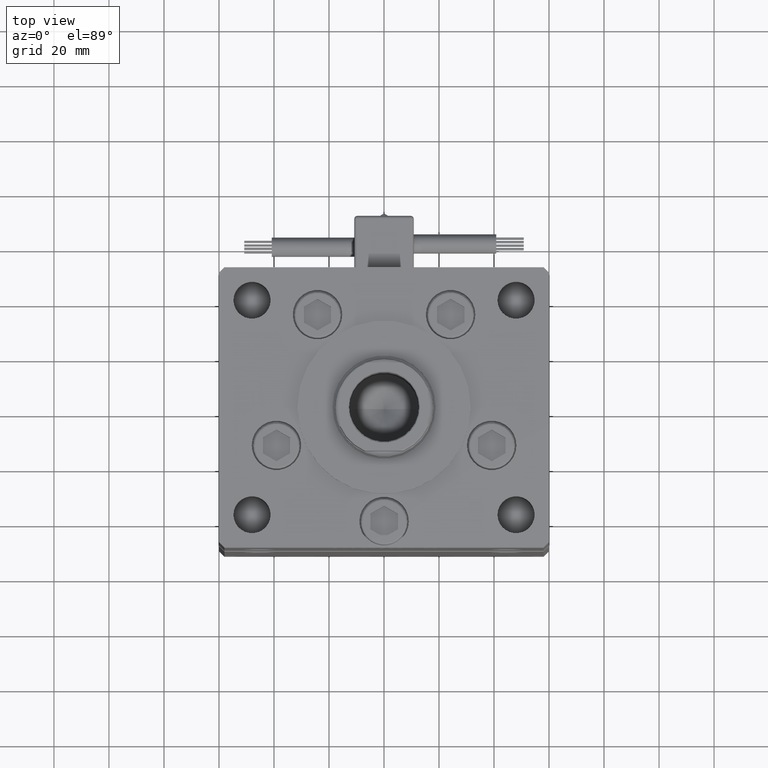
[diagram: clean part render]
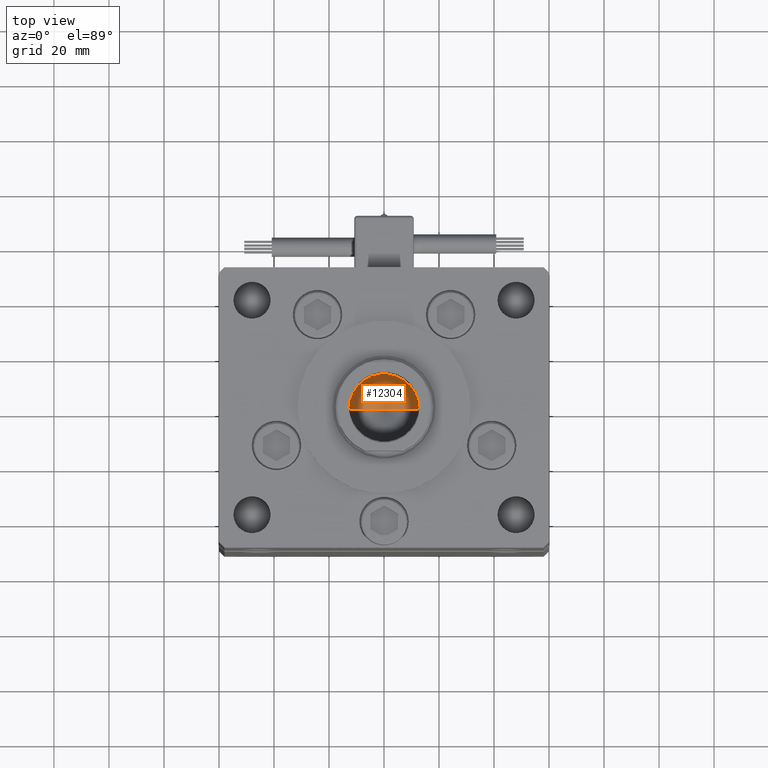
[diagram: same view with one face highlighted and labeled with its STEP entity id]
A machine part, top view. The second image highlights one B-rep face of the part: STEP entity #12304.
In plain terms, the highlighted conical surface has half-angle 59 deg.
Its self-contained STEP definition (entity closure, byte-faithful):
#264 = CARTESIAN_POINT ( 'NONE',  ( -12.74999999999999112, 1.561424668912874125E-15, 124.2500000000000142 ) ) ;
#1475 = EDGE_CURVE ( 'NONE', #56267, #5254, #46440, .T. ) ;
#5254 = VERTEX_POINT ( 'NONE', #264 ) ;
#6286 = VERTEX_POINT ( 'NONE', #55936 ) ;
#8751 = EDGE_CURVE ( 'NONE', #6286, #5254, #52959, .T. ) ;
#12304 = ADVANCED_FACE ( 'NONE', ( #42934 ), #38601, .F. ) ;
#13838 = CARTESIAN_POINT ( 'NONE',  ( 12.74999999999999112, 0.000000000000000000, 124.2500000000000142 ) ) ;
#17275 = VECTOR ( 'NONE', #22689, 1000.000000000000000 ) ;
#17289 = AXIS2_PLACEMENT_3D ( 'NONE', #22260, #19688, #20241 ) ;
#18688 = CARTESIAN_POINT ( 'NONE',  ( 12.74999999999999112, 0.000000000000000000, 124.2500000000000142 ) ) ;
#19688 = DIRECTION ( 'NONE',  ( -0.000000000000000000, -0.000000000000000000, 1.000000000000000000 ) ) ;
#20241 = DIRECTION ( 'NONE',  ( 1.000000000000000000, 0.000000000000000000, 0.000000000000000000 ) ) ;
#20285 = VECTOR ( 'NONE', #48664, 1000.000000000000000 ) ;
#20602 = ORIENTED_EDGE ( 'NONE', *, *, #8751, .F. ) ;
#22260 = CARTESIAN_POINT ( 'NONE',  ( 0.000000000000000000, 0.000000000000000000, 124.2500000000000142 ) ) ;
#22689 = DIRECTION ( 'NONE',  ( 0.8571673007021117785, 0.000000000000000000, 0.5150380749100550437 ) ) ;
#29535 = CARTESIAN_POINT ( 'NONE',  ( 0.000000000000000000, 0.000000000000000000, 124.2500000000000142 ) ) ;
#29816 = DIRECTION ( 'NONE',  ( 1.000000000000000000, 0.000000000000000000, 0.000000000000000000 ) ) ;
#33171 = AXIS2_PLACEMENT_3D ( 'NONE', #29535, #52551, #29816 ) ;
#34622 = ORIENTED_EDGE ( 'NONE', *, *, #1475, .T. ) ;
#38601 = CONICAL_SURFACE ( 'NONE', #33171, 12.74999999999999112, 1.029744258676653423 ) ;
#39793 = LINE ( 'NONE', #18688, #17275 ) ;
#41542 = EDGE_CURVE ( 'NONE', #6286, #56267, #39793, .T. ) ;
#42592 = EDGE_LOOP ( 'NONE', ( #20602, #54930, #34622 ) ) ;
#42934 = FACE_OUTER_BOUND ( 'NONE', #42592, .T. ) ;
#46440 = CIRCLE ( 'NONE', #17289, 12.74999999999999112 ) ;
#48664 = DIRECTION ( 'NONE',  ( -0.8571673007021117785, 1.049727191138617956E-16, 0.5150380749100550437 ) ) ;
#52551 = DIRECTION ( 'NONE',  ( -0.000000000000000000, -0.000000000000000000, 1.000000000000000000 ) ) ;
#52959 = LINE ( 'NONE', #53525, #20285 ) ;
#53525 = CARTESIAN_POINT ( 'NONE',  ( -12.74999999999999112, 1.561424668912874125E-15, 124.2500000000000142 ) ) ;
#54930 = ORIENTED_EDGE ( 'NONE', *, *, #41542, .T. ) ;
#55936 = CARTESIAN_POINT ( 'NONE',  ( -1.307202896762960287E-14, 0.000000000000000000, 116.5890271073986213 ) ) ;
#56267 = VERTEX_POINT ( 'NONE', #13838 ) ;